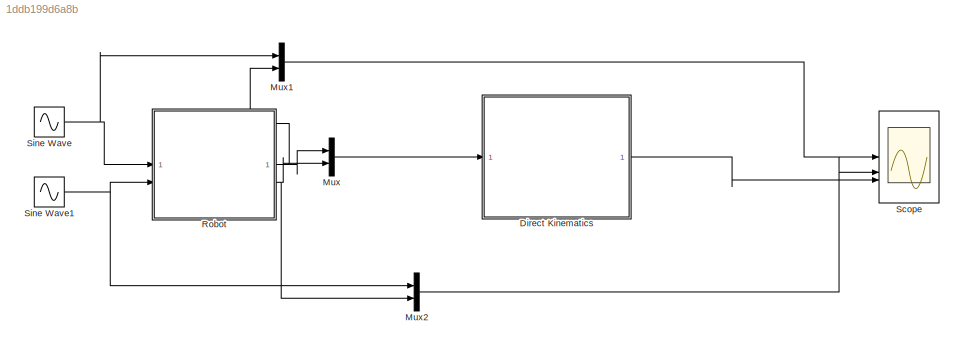
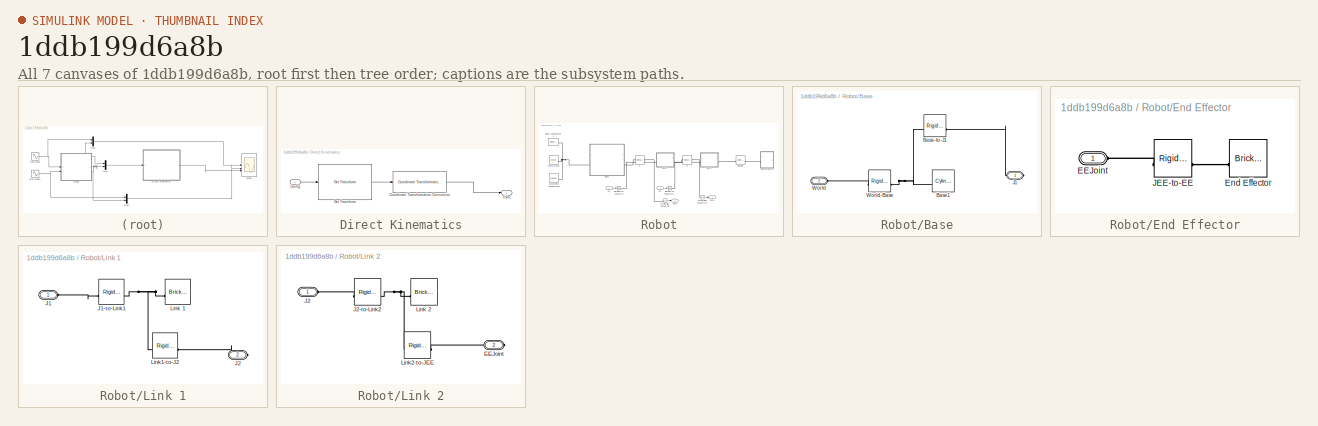
[diagram: thumbnail index - all 7 canvases of the model, root first then tree order]
MODEL slx_1ddb199d6a8b
KIND model
CONFIG AbsTol = auto
CONFIG EnableMultiTasking = off
CONFIG FixedStep = auto
CONFIG MaxStep = auto
CONFIG MinStep = auto
CONFIG RelTol = 1e-3
CONFIG SampleTimeConstraint = Unconstrained
CONFIG SolverName = VariableStepAuto
CONFIG StartTime = 0.0
CONFIG StopTime = 10.0
BLOCK [SubSystem] Direct Kinematics
BLOCK [Inport] Direct Kinematics/Config
BLOCK [Reference] Direct Kinematics/Coordinate Transformation Conversion  REF=robotcorelib/Coordinate Transformation Conversion
  LibrarySourceBlock = robotutilslib/Coordinate Transformation Conversion
  SourceBlock = robotcorelib/Coordinate Transformation Conversion
  SourceType = robotics.slcore.internal.block.CoordinateTransformationConversion
BLOCK [Reference] Direct Kinematics/Get Transform  REF=robotmaniplib/Get Transform
  SourceBlock = robotmaniplib/Get Transform
  SourceType = Get Transform
BLOCK [Outport] Direct Kinematics/TrVec
BLOCK [Mux] Mux
  DisplayOption = bar
  Inputs = 2
BLOCK [Mux] Mux1
  DisplayOption = bar
  Inputs = 2
BLOCK [Mux] Mux2
  DisplayOption = bar
  Inputs = 2
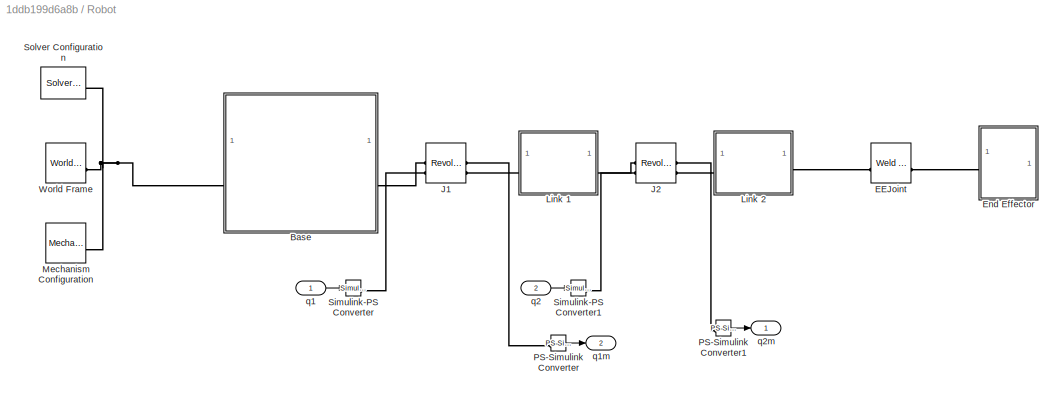
BLOCK [SubSystem] Robot
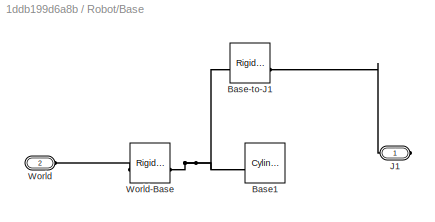
BLOCK [SubSystem] Robot/Base
BLOCK [Reference] Robot/Base/Base-to-J1  REF=sm_lib/Frames and
Transforms/Rigid
Transform
  SourceBlock = sm_lib/Frames and\nTransforms/Rigid\nTransform
  SourceType = Rigid\nTransform
BLOCK [Reference] Robot/Base/Base1  REF=sm_lib/Body Elements/Cylindrical Solid
  SourceBlock = sm_lib/Body Elements/Cylindrical Solid
  SourceType = Cylindrical Solid
BLOCK [PMIOPort] Robot/Base/J1
  Side = Right
BLOCK [PMIOPort] Robot/Base/World
  Port = 2
  Side = Left
BLOCK [Reference] Robot/Base/World-Base  REF=sm_lib/Frames and
Transforms/Rigid
Transform
  SourceBlock = sm_lib/Frames and\nTransforms/Rigid\nTransform
  SourceType = Rigid\nTransform
BLOCK [Reference] Robot/EEJoint  REF=sm_lib/Joints/Weld Joint
  SourceBlock = sm_lib/Joints/Weld Joint
  SourceType = Weld Joint
BLOCK [SubSystem] Robot/End Effector
BLOCK [PMIOPort] Robot/End Effector/EEJoint
  Side = Left
BLOCK [Reference] Robot/End Effector/End Effector  REF=sm_lib/Body Elements/Brick Solid
  SourceBlock = sm_lib/Body Elements/Brick Solid
  SourceType = Brick Solid
BLOCK [Reference] Robot/End Effector/JEE-to-EE  REF=sm_lib/Frames and
Transforms/Rigid
Transform
  SourceBlock = sm_lib/Frames and\nTransforms/Rigid\nTransform
  SourceType = Rigid\nTransform
BLOCK [Reference] Robot/J1  REF=sm_lib/Joints/Revolute Joint
  SourceBlock = sm_lib/Joints/Revolute Joint
  SourceType = Revolute Joint
BLOCK [Reference] Robot/J2  REF=sm_lib/Joints/Revolute Joint
  SourceBlock = sm_lib/Joints/Revolute Joint
  SourceType = Revolute Joint
BLOCK [SubSystem] Robot/Link 1
BLOCK [PMIOPort] Robot/Link 1/J1
  Side = Left
BLOCK [Reference] Robot/Link 1/J1-to-Link1  REF=sm_lib/Frames and
Transforms/Rigid
Transform
  SourceBlock = sm_lib/Frames and\nTransforms/Rigid\nTransform
  SourceType = Rigid\nTransform
BLOCK [PMIOPort] Robot/Link 1/J2
  Port = 2
  Side = Right
BLOCK [Reference] Robot/Link 1/Link 1  REF=sm_lib/Body Elements/Brick Solid
  SourceBlock = sm_lib/Body Elements/Brick Solid
  SourceType = Brick Solid
BLOCK [Reference] Robot/Link 1/Link1-to-J2  REF=sm_lib/Frames and
Transforms/Rigid
Transform
  SourceBlock = sm_lib/Frames and\nTransforms/Rigid\nTransform
  SourceType = Rigid\nTransform
BLOCK [SubSystem] Robot/Link 2
BLOCK [PMIOPort] Robot/Link 2/EEJoint
  Port = 2
  Side = Right
BLOCK [PMIOPort] Robot/Link 2/J2
  Side = Left
BLOCK [Reference] Robot/Link 2/J2-to-Link2  REF=sm_lib/Frames and
Transforms/Rigid
Transform
  SourceBlock = sm_lib/Frames and\nTransforms/Rigid\nTransform
  SourceType = Rigid\nTransform
BLOCK [Reference] Robot/Link 2/Link 2  REF=sm_lib/Body Elements/Brick Solid
  SourceBlock = sm_lib/Body Elements/Brick Solid
  SourceType = Brick Solid
BLOCK [Reference] Robot/Link 2/Link2-to-JEE  REF=sm_lib/Frames and
Transforms/Rigid
Transform
  SourceBlock = sm_lib/Frames and\nTransforms/Rigid\nTransform
  SourceType = Rigid\nTransform
BLOCK [Reference] Robot/Mechanism Configuration  REF=sm_lib/Utilities/Mechanism
Configuration
  SourceBlock = sm_lib/Utilities/Mechanism\nConfiguration
  SourceType = Mechanism\nConfiguration
BLOCK [Reference] Robot/PS-Simulink Converter  REF=nesl_utility/PS-Simulink
Converter
  SourceBlock = nesl_utility/PS-Simulink\nConverter
  SourceType = PS-Simulink\nConverter
BLOCK [Reference] Robot/PS-Simulink Converter1  REF=nesl_utility/PS-Simulink
Converter
  SourceBlock = nesl_utility/PS-Simulink\nConverter
  SourceType = PS-Simulink\nConverter
BLOCK [Reference] Robot/Simulink-PS Converter  REF=nesl_utility/Simulink-PS
Converter
  SourceBlock = nesl_utility/Simulink-PS\nConverter
  SourceType = Simulink-PS\nConverter
BLOCK [Reference] Robot/Simulink-PS Converter1  REF=nesl_utility/Simulink-PS
Converter
  SourceBlock = nesl_utility/Simulink-PS\nConverter
  SourceType = Simulink-PS\nConverter
BLOCK [Reference] Robot/Solver Configuration  REF=nesl_utility/Solver
Configuration
  SourceBlock = nesl_utility/Solver\nConfiguration
  SourceType = Solver\nConfiguration
BLOCK [Reference] Robot/World Frame  REF=sm_lib/Frames and
Transforms/World Frame
  SourceBlock = sm_lib/Frames and\nTransforms/World Frame
  SourceType = World Frame
BLOCK [Inport] Robot/q1
BLOCK [Outport] Robot/q1m
  Port = 2
BLOCK [Inport] Robot/q2
  Port = 2
BLOCK [Outport] Robot/q2m
BLOCK [Scope] Scope
  Floating = off
  NumInputPorts = 3
  ScopeSpecificationString = Simulink.scopes.TimeScopeBlockCfg('CurrentConfiguration', extmgr.ConfigurationSet(extmgr.Configuration('Core','General UI',true),extmgr.Configuration('Core','Source UI',true),extmgr.Configuration('Sources','WiredSimulink',true),extmgr.Configuration('Visuals','Time Domain',true,'SerializedDisplays',{struct('MinYLimReal','-1.625','MaxYLimReal','1.625','YLabelReal','','MinYLimMag','0.00000','MaxYLimM...<+2737ch>
BLOCK [Sin] Sine Wave
  Amplitude = 1.3
  SampleTime = 0
BLOCK [Sin] Sine Wave1
  Amplitude = 0.6
  Frequency = 0.7
  SampleTime = 0
LINE Direct Kinematics/Config:1 -> Direct Kinematics/Get Transform:1
LINE Direct Kinematics/Coordinate Transformation Conversion:1 -> Direct Kinematics/TrVec:1
LINE Direct Kinematics/Get Transform:1 -> Direct Kinematics/Coordinate Transformation Conversion:1
LINE Direct Kinematics:1 -> Scope:3
LINE Mux1:1 -> Scope:1
LINE Mux2:1 -> Scope:2
LINE Mux:1 -> Direct Kinematics:1
LINE Robot/PS-Simulink Converter1:1 -> Robot/q2m:1
LINE Robot/PS-Simulink Converter:1 -> Robot/q1m:1
LINE Robot/q1:1 -> Robot/Simulink-PS Converter:1
LINE Robot/q2:1 -> Robot/Simulink-PS Converter1:1
NET Robot:1 -> Mux1:2, Mux:1
NET Robot:2 -> Mux2:2, Mux:2
NET Sine Wave1:1 -> Mux2:1, Robot:2
NET Sine Wave:1 -> Mux1:1, Robot:1
PNET net1: Robot/Base/Base-to-J1:LConn1 -- Robot/Base/Base1:RConn1 -- Robot/Base/World-Base:RConn1
PLINE Robot/Base/Base-to-J1:RConn1 -- Robot/Base/J1:RConn1
PLINE Robot/Base/World-Base:LConn1 -- Robot/Base/World:RConn1
PNET net2: Robot/Base:LConn1 -- Robot/Mechanism Configuration:RConn1 -- Robot/Solver Configuration:RConn1 -- Robot/World Frame:RConn1
PLINE Robot/Base:RConn1 -- Robot/J1:LConn1
PLINE Robot/EEJoint:LConn1 -- Robot/Link 2:RConn1
PLINE Robot/EEJoint:RConn1 -- Robot/End Effector:LConn1
PLINE Robot/End Effector/EEJoint:RConn1 -- Robot/End Effector/JEE-to-EE:LConn1
PLINE Robot/End Effector/End Effector:RConn1 -- Robot/End Effector/JEE-to-EE:RConn1
PLINE Robot/J1:LConn2 -- Robot/Simulink-PS Converter:RConn1
PLINE Robot/J1:RConn1 -- Robot/Link 1:LConn1
PLINE Robot/J1:RConn2 -- Robot/PS-Simulink Converter:LConn1
PLINE Robot/J2:LConn1 -- Robot/Link 1:RConn1
PLINE Robot/J2:LConn2 -- Robot/Simulink-PS Converter1:RConn1
PLINE Robot/J2:RConn1 -- Robot/Link 2:LConn1
PLINE Robot/J2:RConn2 -- Robot/PS-Simulink Converter1:LConn1
PLINE Robot/Link 1/J1-to-Link1:LConn1 -- Robot/Link 1/J1:RConn1
PNET net3: Robot/Link 1/J1-to-Link1:RConn1 -- Robot/Link 1/Link 1:RConn1 -- Robot/Link 1/Link1-to-J2:LConn1
PLINE Robot/Link 1/J2:RConn1 -- Robot/Link 1/Link1-to-J2:RConn1
PLINE Robot/Link 2/EEJoint:RConn1 -- Robot/Link 2/Link2-to-JEE:RConn1
PLINE Robot/Link 2/J2-to-Link2:LConn1 -- Robot/Link 2/J2:RConn1
PNET net4: Robot/Link 2/J2-to-Link2:RConn1 -- Robot/Link 2/Link 2:RConn1 -- Robot/Link 2/Link2-to-JEE:LConn1
note: NET lines group one-source signal fan-out (src -> all destinations, sorted); 1:1 wires keep LINE; PNET lines group multi-terminal physical nets as a canonical sorted terminal list (undirected conserving connections); 2-terminal nets keep the pairwise PLINE form
